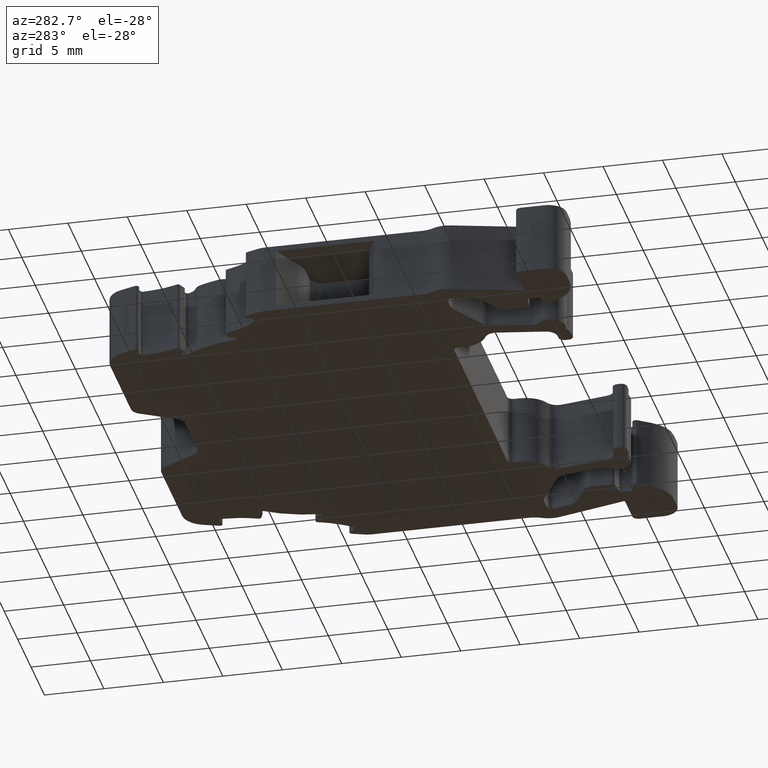
[diagram: clean part render]
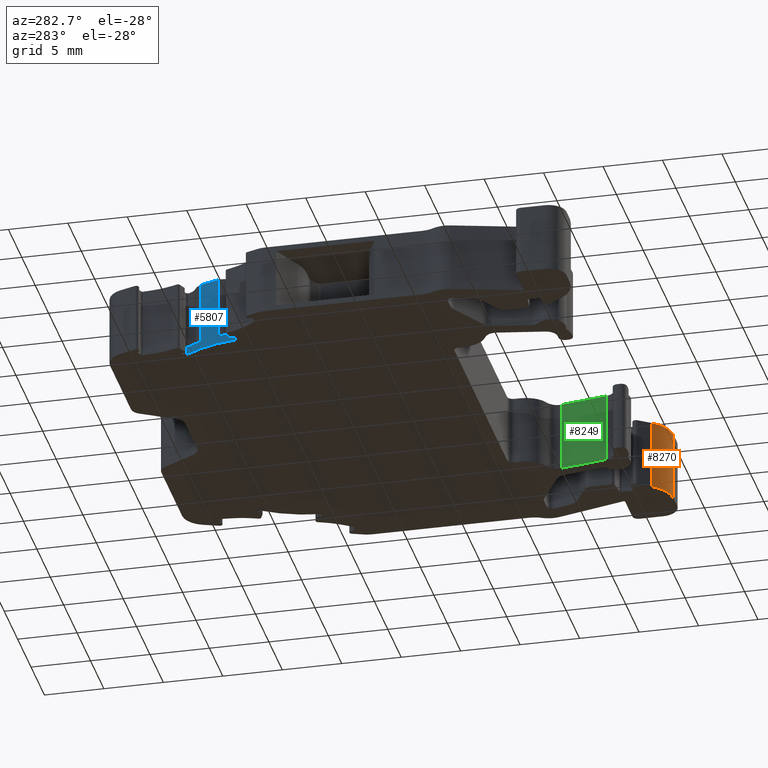
[diagram: same view with three faces highlighted in distinct colors, each labeled with its STEP entity id]
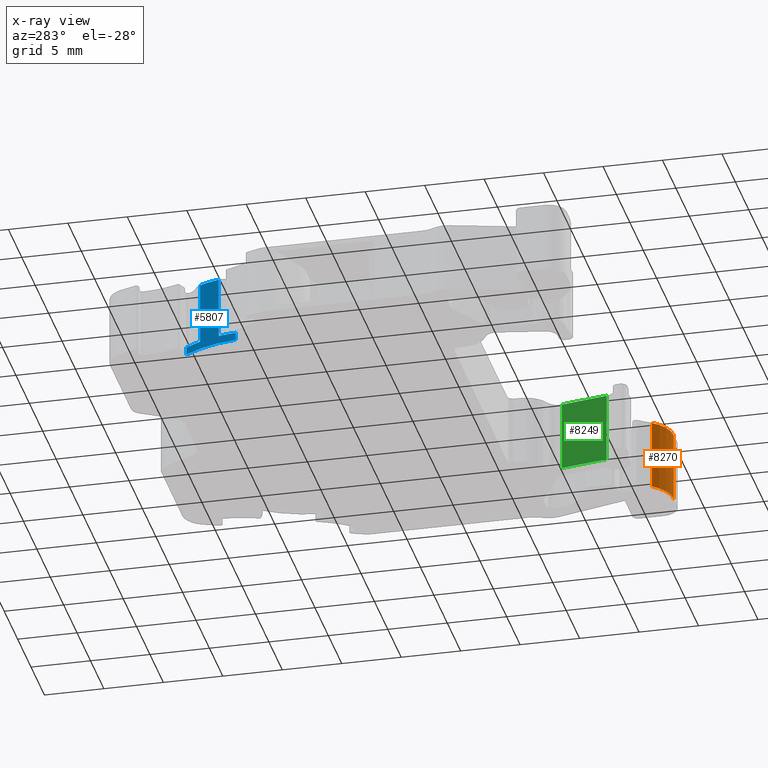
[diagram: x-ray of the same camera — body ghosted, the three highlighted faces saturated]
A machine part, auxiliary view with three faces highlighted in distinct colors.
The next image is the same camera in x-ray (body ghosted, the three faces saturated) — at least one of them is partly hidden behind the body in this view.
Their STEP definitions:

[orange] entity #8270 — the highlighted cylindrical surface (partial cylindrical patch) has radius 3 mm, axis along (0, 0, 1).
#339 = EDGE_LOOP ( 'NONE', ( #1255, #1271, #1226, #1258 ) ) ;
#777 = VERTEX_POINT ( 'NONE', #10923 ) ;
#803 = VERTEX_POINT ( 'NONE', #10976 ) ;
#809 = VERTEX_POINT ( 'NONE', #10972 ) ;
#832 = VERTEX_POINT ( 'NONE', #10948 ) ;
#1226 = ORIENTED_EDGE ( 'NONE', *, *, #4742, .T. ) ;
#1255 = ORIENTED_EDGE ( 'NONE', *, *, #4764, .F. ) ;
#1258 = ORIENTED_EDGE ( 'NONE', *, *, #4758, .F. ) ;
#1271 = ORIENTED_EDGE ( 'NONE', *, *, #4728, .F. ) ;
#4728 = EDGE_CURVE ( 'NONE', #809, #777, #7168, .T. ) ;
#4742 = EDGE_CURVE ( 'NONE', #809, #803, #14290, .T. ) ;
#4758 = EDGE_CURVE ( 'NONE', #832, #803, #7212, .T. ) ;
#4764 = EDGE_CURVE ( 'NONE', #777, #832, #14351, .T. ) ;
#7168 = CIRCLE ( 'NONE', #7169, 2.999999999999891600 ) ;
#7169 = AXIS2_PLACEMENT_3D ( 'NONE', #14260, #14279, #14256 ) ;
#7192 = VECTOR ( 'NONE', #14317, 1000.000000000000000 ) ;
#7193 = AXIS2_PLACEMENT_3D ( 'NONE', #14349, #14330, #14339 ) ;
#7212 = CIRCLE ( 'NONE', #7193, 3.000000000000113700 ) ;
#7235 = VECTOR ( 'NONE', #14367, 1000.000000000000000 ) ;
#8270 = ADVANCED_FACE ( 'NONE', ( #12320 ), #12327, .T. ) ;
#10294 = AXIS2_PLACEMENT_3D ( 'NONE', #12343, #12326, #12341 ) ;
#10923 = CARTESIAN_POINT ( 'NONE',  ( 1477.076522463924200, 918.7518830052542900, -2.949999999999999700 ) ) ;
#10948 = CARTESIAN_POINT ( 'NONE',  ( 1477.076522463924200, 918.7518830052541700, 2.949999999999999700 ) ) ;
#10972 = CARTESIAN_POINT ( 'NONE',  ( 1479.533967240764200, 917.4726194420808300, -2.949999999999999700 ) ) ;
#10976 = CARTESIAN_POINT ( 'NONE',  ( 1479.533967240764200, 917.4726194420808300, 2.949999999999999700 ) ) ;
#12320 = FACE_OUTER_BOUND ( 'NONE', #339, .T. ) ;
#12326 = DIRECTION ( 'NONE',  ( 0.0000000000000000000, 0.0000000000000000000, 1.000000000000000000 ) ) ;
#12327 = CYLINDRICAL_SURFACE ( 'NONE', #10294, 2.999999999999891600 ) ;
#12341 = DIRECTION ( 'NONE',  ( -1.000000000000000000, 0.0000000000000000000, 0.0000000000000000000 ) ) ;
#12343 = CARTESIAN_POINT ( 'NONE',  ( 1479.533973605860000, 920.4726194420740100, -54.93784223741520400 ) ) ;
#14256 = DIRECTION ( 'NONE',  ( -1.000000000000000000, 0.0000000000000000000, 0.0000000000000000000 ) ) ;
#14260 = CARTESIAN_POINT ( 'NONE',  ( 1479.533973605860000, 920.4726194420740100, -2.949999999999999700 ) ) ;
#14279 = DIRECTION ( 'NONE',  ( 0.0000000000000000000, 0.0000000000000000000, -1.000000000000000000 ) ) ;
#14286 = CARTESIAN_POINT ( 'NONE',  ( 1479.533967240764200, 917.4726194420810500, -54.93784223741520400 ) ) ;
#14290 = LINE ( 'NONE', #14286, #7192 ) ;
#14317 = DIRECTION ( 'NONE',  ( 0.0000000000000000000, 0.0000000000000000000, 1.000000000000000000 ) ) ;
#14330 = DIRECTION ( 'NONE',  ( 0.0000000000000000000, 0.0000000000000000000, 1.000000000000000000 ) ) ;
#14339 = DIRECTION ( 'NONE',  ( 1.000000000000000000, 0.0000000000000000000, 0.0000000000000000000 ) ) ;
#14349 = CARTESIAN_POINT ( 'NONE',  ( 1479.533973605860000, 920.4726194420740100, 2.949999999999999700 ) ) ;
#14351 = LINE ( 'NONE', #14354, #7235 ) ;
#14354 = CARTESIAN_POINT ( 'NONE',  ( 1477.076522463924000, 918.7518830052540600, -54.93784223741520400 ) ) ;
#14367 = DIRECTION ( 'NONE',  ( 0.0000000000000000000, 0.0000000000000000000, 1.000000000000000000 ) ) ;

[blue] entity #5807 — the highlighted cylindrical surface (partial cylindrical patch) has radius 10 mm, axis along (0, 0, -1).
#228 = VERTEX_POINT ( 'NONE', #10765 ) ;
#238 = VERTEX_POINT ( 'NONE', #10791 ) ;
#245 = VERTEX_POINT ( 'NONE', #10826 ) ;
#253 = VERTEX_POINT ( 'NONE', #10865 ) ;
#259 = VERTEX_POINT ( 'NONE', #10829 ) ;
#261 = VERTEX_POINT ( 'NONE', #10823 ) ;
#556 = EDGE_LOOP ( 'NONE', ( #9813, #9745, #9812, #9806, #9815, #9760, #9746, #9756 ) ) ;
#1442 = CARTESIAN_POINT ( 'NONE',  ( 1444.559639083759700, 946.4112109902019900, -2.949999999999999700 ) ) ;
#1486 = CARTESIAN_POINT ( 'NONE',  ( 1446.214729825668900, 950.9584329120049200, -2.949999999999999700 ) ) ;
#2837 = CARTESIAN_POINT ( 'NONE',  ( 1454.504884251906100, 945.3661758015759900, 2.899999999999999900 ) ) ;
#2840 = DIRECTION ( 'NONE',  ( -1.000000000000000000, 0.0000000000000000000, 0.0000000000000000000 ) ) ;
#2846 = FACE_OUTER_BOUND ( 'NONE', #556, .T. ) ;
#2848 = CYLINDRICAL_SURFACE ( 'NONE', #14511, 10.00000000000023100 ) ;
#2880 = DIRECTION ( 'NONE',  ( 0.0000000000000000000, 0.0000000000000000000, -1.000000000000000000 ) ) ;
#2947 = AXIS2_PLACEMENT_3D ( 'NONE', #13166, #13210, #13179 ) ;
#2955 = CIRCLE ( 'NONE', #2947, 9.999999999999786800 ) ;
#2974 = AXIS2_PLACEMENT_3D ( 'NONE', #13509, #13432, #13456 ) ;
#2985 = CIRCLE ( 'NONE', #2974, 10.00000000000023100 ) ;
#3005 = VECTOR ( 'NONE', #13519, 1000.000000000000000 ) ;
#3012 = VECTOR ( 'NONE', #13380, 1000.000000000000000 ) ;
#5414 = EDGE_CURVE ( 'NONE', #238, #245, #10291, .T. ) ;
#5501 = EDGE_CURVE ( 'NONE', #259, #261, #10401, .T. ) ;
#5502 = EDGE_CURVE ( 'NONE', #261, #228, #7717, .T. ) ;
#5517 = EDGE_CURVE ( 'NONE', #238, #253, #7726, .T. ) ;
#5607 = EDGE_CURVE ( 'NONE', #253, #228, #2955, .T. ) ;
#5630 = EDGE_CURVE ( 'NONE', #245, #11476, #13369, .T. ) ;
#5638 = EDGE_CURVE ( 'NONE', #11434, #11476, #2985, .T. ) ;
#5642 = EDGE_CURVE ( 'NONE', #259, #11434, #13467, .T. ) ;
#5807 = ADVANCED_FACE ( 'NONE', ( #2846 ), #2848, .T. ) ;
#7529 = DIRECTION ( 'NONE',  ( -0.0000000000000000000, -0.0000000000000000000, -1.000000000000000000 ) ) ;
#7533 = DIRECTION ( 'NONE',  ( 1.000000000000000000, -4.440892098500523900E-014, 0.0000000000000000000 ) ) ;
#7536 = CARTESIAN_POINT ( 'NONE',  ( 1454.504884251906100, 945.3661758015759900, -2.299999999999999800 ) ) ;
#7695 = DIRECTION ( 'NONE',  ( 0.0000000000000000000, 0.0000000000000000000, 1.000000000000000000 ) ) ;
#7702 = CARTESIAN_POINT ( 'NONE',  ( 1454.504884251906100, 945.3661758015759900, -2.299999999999999800 ) ) ;
#7704 = CARTESIAN_POINT ( 'NONE',  ( 1444.839760532236100, 947.9323760048860100, -2.299999999999999800 ) ) ;
#7717 = LINE ( 'NONE', #7704, #10400 ) ;
#7720 = DIRECTION ( 'NONE',  ( -0.0000000000000000000, -0.0000000000000000000, -1.000000000000000000 ) ) ;
#7721 = DIRECTION ( 'NONE',  ( 1.000000000000000000, -3.330669073875392600E-014, 0.0000000000000000000 ) ) ;
#7726 = LINE ( 'NONE', #7762, #10046 ) ;
#7753 = DIRECTION ( 'NONE',  ( 0.0000000000000000000, 0.0000000000000000000, 1.000000000000000000 ) ) ;
#7762 = CARTESIAN_POINT ( 'NONE',  ( 1445.451510206604100, 949.6131062690830000, -2.299999999999999800 ) ) ;
#9745 = ORIENTED_EDGE ( 'NONE', *, *, #5414, .T. ) ;
#9746 = ORIENTED_EDGE ( 'NONE', *, *, #5502, .T. ) ;
#9756 = ORIENTED_EDGE ( 'NONE', *, *, #5607, .F. ) ;
#9760 = ORIENTED_EDGE ( 'NONE', *, *, #5501, .T. ) ;
#9806 = ORIENTED_EDGE ( 'NONE', *, *, #5638, .F. ) ;
#9812 = ORIENTED_EDGE ( 'NONE', *, *, #5630, .T. ) ;
#9813 = ORIENTED_EDGE ( 'NONE', *, *, #5517, .F. ) ;
#9815 = ORIENTED_EDGE ( 'NONE', *, *, #5642, .F. ) ;
#10046 = VECTOR ( 'NONE', #7753, 1000.000000000000000 ) ;
#10248 = AXIS2_PLACEMENT_3D ( 'NONE', #7536, #7529, #7533 ) ;
#10291 = CIRCLE ( 'NONE', #10248, 10.00000000000023100 ) ;
#10399 = AXIS2_PLACEMENT_3D ( 'NONE', #7702, #7720, #7721 ) ;
#10400 = VECTOR ( 'NONE', #7695, 1000.000000000000000 ) ;
#10401 = CIRCLE ( 'NONE', #10399, 10.00000000000023100 ) ;
#10765 = CARTESIAN_POINT ( 'NONE',  ( 1444.839760532236400, 947.9323760048860100, 2.949999999999999700 ) ) ;
#10791 = CARTESIAN_POINT ( 'NONE',  ( 1445.451510206604100, 949.6131062690830000, -2.299999999999999800 ) ) ;
#10823 = CARTESIAN_POINT ( 'NONE',  ( 1444.839760532236100, 947.9323760048860100, -2.299999999999999800 ) ) ;
#10826 = CARTESIAN_POINT ( 'NONE',  ( 1446.214729825670000, 950.9584329120069700, -2.299999999999999800 ) ) ;
#10829 = CARTESIAN_POINT ( 'NONE',  ( 1444.559639083760000, 946.4112109902019900, -2.299999999999999800 ) ) ;
#10865 = CARTESIAN_POINT ( 'NONE',  ( 1445.451510206603400, 949.6131062690827800, 2.949999999999999700 ) ) ;
#11434 = VERTEX_POINT ( 'NONE', #1442 ) ;
#11476 = VERTEX_POINT ( 'NONE', #1486 ) ;
#13166 = CARTESIAN_POINT ( 'NONE',  ( 1454.504884251906100, 945.3661758015759900, 2.949999999999999700 ) ) ;
#13179 = DIRECTION ( 'NONE',  ( 1.000000000000000000, 0.0000000000000000000, 0.0000000000000000000 ) ) ;
#13210 = DIRECTION ( 'NONE',  ( 0.0000000000000000000, 0.0000000000000000000, 1.000000000000000000 ) ) ;
#13354 = CARTESIAN_POINT ( 'NONE',  ( 1446.214729825670000, 950.9584329120069700, 2.899999999999999900 ) ) ;
#13369 = LINE ( 'NONE', #13354, #3012 ) ;
#13380 = DIRECTION ( 'NONE',  ( 0.0000000000000000000, 0.0000000000000000000, -1.000000000000000000 ) ) ;
#13432 = DIRECTION ( 'NONE',  ( 0.0000000000000000000, 0.0000000000000000000, -1.000000000000000000 ) ) ;
#13450 = CARTESIAN_POINT ( 'NONE',  ( 1444.559639083760000, 946.4112109902019900, 2.899999999999999900 ) ) ;
#13456 = DIRECTION ( 'NONE',  ( -1.000000000000000000, 0.0000000000000000000, 0.0000000000000000000 ) ) ;
#13467 = LINE ( 'NONE', #13450, #3005 ) ;
#13509 = CARTESIAN_POINT ( 'NONE',  ( 1454.504884251906100, 945.3661758015759900, -2.949999999999999700 ) ) ;
#13519 = DIRECTION ( 'NONE',  ( 0.0000000000000000000, 0.0000000000000000000, -1.000000000000000000 ) ) ;
#14511 = AXIS2_PLACEMENT_3D ( 'NONE', #2837, #2880, #2840 ) ;

[green] entity #8249 — the highlighted planar face has unit normal (-0.9848, 0.1736, 0).
#6 = ORIENTED_EDGE ( 'NONE', *, *, #4825, .F. ) ;
#75 = ORIENTED_EDGE ( 'NONE', *, *, #4823, .T. ) ;
#96 = ORIENTED_EDGE ( 'NONE', *, *, #4845, .F. ) ;
#161 = ORIENTED_EDGE ( 'NONE', *, *, #4802, .F. ) ;
#416 = EDGE_LOOP ( 'NONE', ( #6, #96, #75, #161 ) ) ;
#804 = VERTEX_POINT ( 'NONE', #11008 ) ;
#1371 = CARTESIAN_POINT ( 'NONE',  ( 1471.622996443866400, 921.3392168923048800, -2.949999999999999700 ) ) ;
#1678 = CARTESIAN_POINT ( 'NONE',  ( 1472.314855627631700, 925.2629471964759200, 2.949999999999999700 ) ) ;
#3503 = CARTESIAN_POINT ( 'NONE',  ( 1471.622996443866400, 921.3392168923048800, -2.949999999999999700 ) ) ;
#3509 = LINE ( 'NONE', #3503, #7341 ) ;
#3518 = DIRECTION ( 'NONE',  ( 0.1736480963929201700, 0.9848077673430053500, 0.0000000000000000000 ) ) ;
#3710 = CARTESIAN_POINT ( 'NONE',  ( 1471.622996443866200, 921.3392168923049900, 2.949999999999999700 ) ) ;
#4171 = DIRECTION ( 'NONE',  ( -0.1736480963933020000, -0.9848077673429380700, 0.0000000000000000000 ) ) ;
#4178 = CARTESIAN_POINT ( 'NONE',  ( 1472.314855627631700, 925.2629471964759200, 2.949999999999999700 ) ) ;
#4182 = LINE ( 'NONE', #4178, #7283 ) ;
#4227 = CARTESIAN_POINT ( 'NONE',  ( 1472.314855627631900, 925.2629471964759200, -54.93784223741520400 ) ) ;
#4231 = CARTESIAN_POINT ( 'NONE',  ( 1471.622996443866000, 921.3392168923049900, -54.93784223741520400 ) ) ;
#4236 = DIRECTION ( 'NONE',  ( 0.0000000000000000000, 0.0000000000000000000, 1.000000000000000000 ) ) ;
#4246 = LINE ( 'NONE', #4231, #7295 ) ;
#4248 = LINE ( 'NONE', #4227, #7296 ) ;
#4257 = DIRECTION ( 'NONE',  ( 0.0000000000000000000, 0.0000000000000000000, 1.000000000000000000 ) ) ;
#4802 = EDGE_CURVE ( 'NONE', #11667, #4923, #4182, .T. ) ;
#4823 = EDGE_CURVE ( 'NONE', #10619, #4923, #4246, .T. ) ;
#4825 = EDGE_CURVE ( 'NONE', #804, #11667, #4248, .T. ) ;
#4845 = EDGE_CURVE ( 'NONE', #10619, #804, #3509, .T. ) ;
#4923 = VERTEX_POINT ( 'NONE', #3710 ) ;
#7283 = VECTOR ( 'NONE', #4171, 1000.000000000000200 ) ;
#7295 = VECTOR ( 'NONE', #4236, 1000.000000000000000 ) ;
#7296 = VECTOR ( 'NONE', #4257, 1000.000000000000000 ) ;
#7341 = VECTOR ( 'NONE', #3518, 1000.000000000000100 ) ;
#8249 = ADVANCED_FACE ( 'NONE', ( #12209 ), #12206, .T. ) ;
#10293 = AXIS2_PLACEMENT_3D ( 'NONE', #12234, #12220, #12228 ) ;
#10619 = VERTEX_POINT ( 'NONE', #1371 ) ;
#11008 = CARTESIAN_POINT ( 'NONE',  ( 1472.314855625898400, 925.2629471866509900, -2.949999999999999700 ) ) ;
#11667 = VERTEX_POINT ( 'NONE', #1678 ) ;
#12206 = PLANE ( 'NONE',  #10293 ) ;
#12209 = FACE_OUTER_BOUND ( 'NONE', #416, .T. ) ;
#12220 = DIRECTION ( 'NONE',  ( -0.9848077673429812600, 0.1736480963930570900, 0.0000000000000000000 ) ) ;
#12228 = DIRECTION ( 'NONE',  ( 0.1736480963930570900, 0.9848077673429812600, 0.0000000000000000000 ) ) ;
#12234 = CARTESIAN_POINT ( 'NONE',  ( 1471.622996443866000, 921.3392168923049900, -54.93784223741520400 ) ) ;